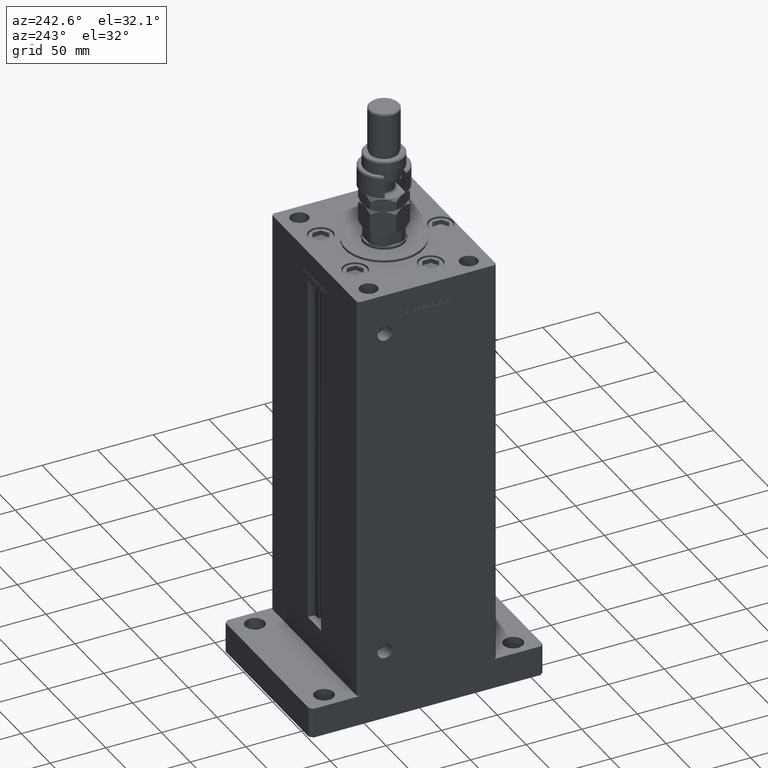
[diagram: clean part render]
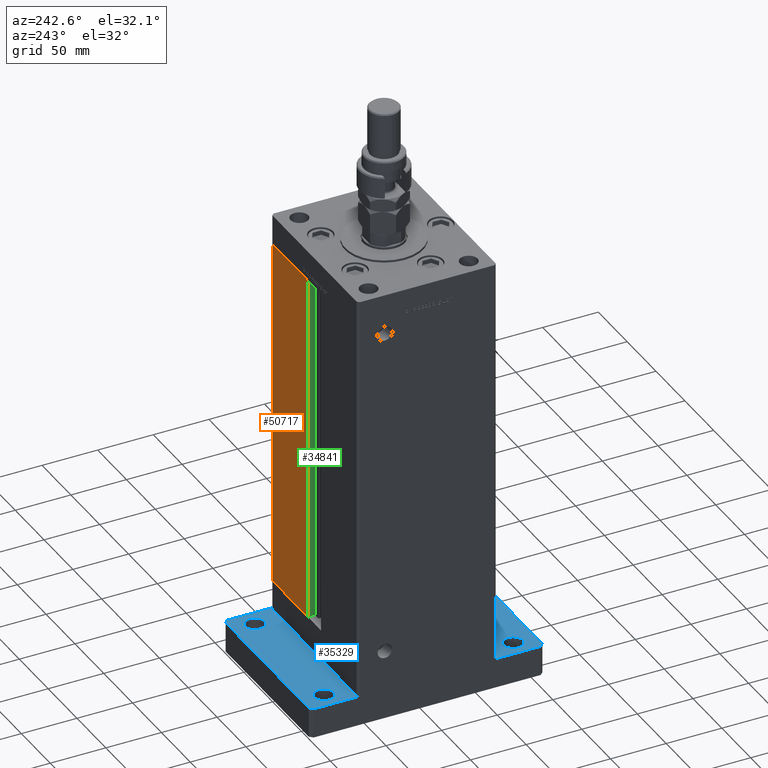
[diagram: same view with three faces highlighted in distinct colors, each labeled with its STEP entity id]
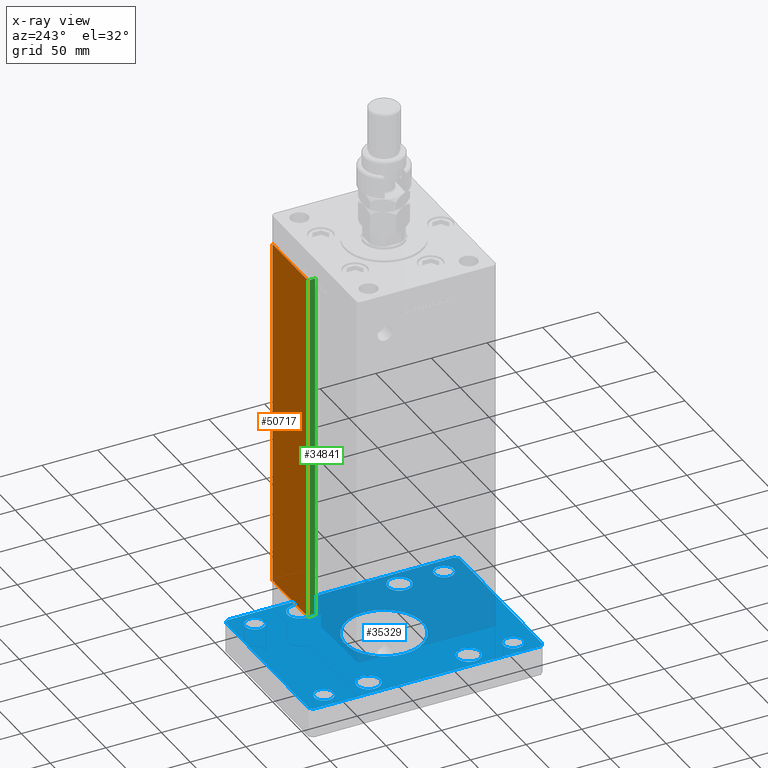
[diagram: x-ray of the same camera — body ghosted, the three highlighted faces saturated]
A machine part, auxiliary view with three faces highlighted in distinct colors.
The next image is the same camera in x-ray (body ghosted, the three faces saturated) — at least one of them is partly hidden behind the body in this view.
Their STEP definitions:

[orange] entity #50717 — the highlighted planar face has unit normal (-0, -1, 0).
#1175 = ORIENTED_EDGE ( 'NONE', *, *, #5462, .T. ) ;
#1516 = ORIENTED_EDGE ( 'NONE', *, *, #23964, .T. ) ;
#2817 = CARTESIAN_POINT ( 'NONE',  ( -11.25000000000000178, 62.49999999999999289, 0.000000000000000000 ) ) ;
#5462 = EDGE_CURVE ( 'NONE', #37058, #23204, #15804, .T. ) ;
#5812 = VERTEX_POINT ( 'NONE', #39892 ) ;
#6486 = ORIENTED_EDGE ( 'NONE', *, *, #41659, .T. ) ;
#7760 = LINE ( 'NONE', #39496, #27200 ) ;
#8631 = ORIENTED_EDGE ( 'NONE', *, *, #11453, .T. ) ;
#9453 = VECTOR ( 'NONE', #19706, 1000.000000000000000 ) ;
#11453 = EDGE_CURVE ( 'NONE', #34259, #37058, #35300, .T. ) ;
#12185 = PLANE ( 'NONE',  #25629 ) ;
#12911 = DIRECTION ( 'NONE',  ( -0.000000000000000000, -0.000000000000000000, 1.000000000000000000 ) ) ;
#14134 = VECTOR ( 'NONE', #37558, 1000.000000000000000 ) ;
#14159 = EDGE_LOOP ( 'NONE', ( #1516, #6486, #8631, #1175 ) ) ;
#14612 = CARTESIAN_POINT ( 'NONE',  ( 73.00000000000001421, 62.50000000000000000, 317.0000000000000000 ) ) ;
#15236 = CARTESIAN_POINT ( 'NONE',  ( 73.00000000000001421, 62.50000000000000000, 317.0000000000000000 ) ) ;
#15804 = LINE ( 'NONE', #15236, #14134 ) ;
#19706 = DIRECTION ( 'NONE',  ( -1.000000000000000000, 1.123707514802790025E-16, 0.000000000000000000 ) ) ;
#20557 = LINE ( 'NONE', #2817, #9453 ) ;
#21290 = DIRECTION ( 'NONE',  ( 1.000000000000000000, 0.000000000000000000, 0.000000000000000000 ) ) ;
#23204 = VERTEX_POINT ( 'NONE', #52506 ) ;
#23964 = EDGE_CURVE ( 'NONE', #23204, #5812, #20557, .T. ) ;
#24780 = DIRECTION ( 'NONE',  ( -1.123707514802790025E-16, -1.000000000000000000, 0.000000000000000000 ) ) ;
#25063 = CARTESIAN_POINT ( 'NONE',  ( -11.25000000000000178, 62.49999999999999289, 317.0000000000000000 ) ) ;
#25629 = AXIS2_PLACEMENT_3D ( 'NONE', #25063, #24780, #29652 ) ;
#27200 = VECTOR ( 'NONE', #12911, 1000.000000000000000 ) ;
#29652 = DIRECTION ( 'NONE',  ( 1.000000000000000000, -1.123707514802790025E-16, 0.000000000000000000 ) ) ;
#34259 = VERTEX_POINT ( 'NONE', #45873 ) ;
#35300 = LINE ( 'NONE', #47321, #54807 ) ;
#37058 = VERTEX_POINT ( 'NONE', #14612 ) ;
#37558 = DIRECTION ( 'NONE',  ( -0.000000000000000000, -0.000000000000000000, -1.000000000000000000 ) ) ;
#39496 = CARTESIAN_POINT ( 'NONE',  ( 11.25000000000000178, 62.49999999999999289, 0.000000000000000000 ) ) ;
#39892 = CARTESIAN_POINT ( 'NONE',  ( 11.25000000000000178, 62.49999999999999289, 0.000000000000000000 ) ) ;
#41096 = FACE_OUTER_BOUND ( 'NONE', #14159, .T. ) ;
#41659 = EDGE_CURVE ( 'NONE', #5812, #34259, #7760, .T. ) ;
#45873 = CARTESIAN_POINT ( 'NONE',  ( 11.24999999999999467, 62.49999999999999289, 317.0000000000000000 ) ) ;
#47321 = CARTESIAN_POINT ( 'NONE',  ( -11.25000000000000178, 62.49999999999999289, 317.0000000000000000 ) ) ;
#50717 = ADVANCED_FACE ( 'NONE', ( #41096 ), #12185, .F. ) ;
#52506 = CARTESIAN_POINT ( 'NONE',  ( 73.00000000000001421, 62.50000000000000000, 0.000000000000000000 ) ) ;
#54807 = VECTOR ( 'NONE', #21290, 1000.000000000000000 ) ;

[blue] entity #35329 — the highlighted planar face has unit normal (0, 0, 1).
#207 = CARTESIAN_POINT ( 'NONE',  ( 60.00000000000000000, 84.99999999999998579, 27.00000000000000000 ) ) ;
#529 = CARTESIAN_POINT ( 'NONE',  ( -71.99999999999998579, -105.0000000000000142, 27.00000000000000000 ) ) ;
#811 = VERTEX_POINT ( 'NONE', #529 ) ;
#1004 = ORIENTED_EDGE ( 'NONE', *, *, #27868, .F. ) ;
#1164 = VERTEX_POINT ( 'NONE', #29335 ) ;
#1234 = CARTESIAN_POINT ( 'NONE',  ( 60.00000000000000000, -45.00000000000000711, 27.00000000000000000 ) ) ;
#1528 = CARTESIAN_POINT ( 'NONE',  ( 59.99999999999997158, -85.00000000000001421, 27.00000000000000000 ) ) ;
#1726 = VERTEX_POINT ( 'NONE', #17087 ) ;
#1778 = EDGE_CURVE ( 'NONE', #24514, #32776, #24998, .T. ) ;
#2511 = AXIS2_PLACEMENT_3D ( 'NONE', #34039, #7698, #25156 ) ;
#2624 = ORIENTED_EDGE ( 'NONE', *, *, #52350, .F. ) ;
#2664 = DIRECTION ( 'NONE',  ( 0.000000000000000000, 0.000000000000000000, 1.000000000000000000 ) ) ;
#2779 = EDGE_LOOP ( 'NONE', ( #37802, #2624 ) ) ;
#2902 = EDGE_CURVE ( 'NONE', #39172, #39460, #36527, .T. ) ;
#2995 = CARTESIAN_POINT ( 'NONE',  ( 75.00000000000000000, -101.9999999999999005, 27.00000000000000000 ) ) ;
#2994 = VECTOR ( 'NONE', #30988, 1000.000000000000114 ) ;
#3221 = CARTESIAN_POINT ( 'NONE',  ( -35.00000000000000711, 0.000000000000000000, 27.00000000000000000 ) ) ;
#3891 = ORIENTED_EDGE ( 'NONE', *, *, #6166, .T. ) ;
#4042 = EDGE_CURVE ( 'NONE', #21079, #49286, #4045, .T. ) ;
#4045 = CIRCLE ( 'NONE', #48800, 10.49999999999999467 ) ;
#4122 = ORIENTED_EDGE ( 'NONE', *, *, #2902, .T. ) ;
#4257 = AXIS2_PLACEMENT_3D ( 'NONE', #1528, #18420, #4966 ) ;
#4577 = CARTESIAN_POINT ( 'NONE',  ( 49.50000000000000000, 45.00000000000000711, 27.00000000000000000 ) ) ;
#4856 = DIRECTION ( 'NONE',  ( -1.000000000000000000, -1.927470528863118062E-16, 0.000000000000000000 ) ) ;
#4966 = DIRECTION ( 'NONE',  ( 1.000000000000000000, 0.000000000000000000, 0.000000000000000000 ) ) ;
#5001 = DIRECTION ( 'NONE',  ( 0.000000000000000000, 0.000000000000000000, 1.000000000000000000 ) ) ;
#5056 = DIRECTION ( 'NONE',  ( 0.000000000000000000, 0.000000000000000000, 1.000000000000000000 ) ) ;
#5101 = VERTEX_POINT ( 'NONE', #49653 ) ;
#5157 = VERTEX_POINT ( 'NONE', #2995 ) ;
#5169 = ORIENTED_EDGE ( 'NONE', *, *, #53660, .F. ) ;
#6166 = EDGE_CURVE ( 'NONE', #811, #43187, #28378, .T. ) ;
#6388 = FACE_BOUND ( 'NONE', #13754, .T. ) ;
#6443 = CARTESIAN_POINT ( 'NONE',  ( 70.50000000000000000, 45.00000000000000711, 27.00000000000000000 ) ) ;
#6538 = ORIENTED_EDGE ( 'NONE', *, *, #46305, .T. ) ;
#6605 = CARTESIAN_POINT ( 'NONE',  ( -71.99999999999998579, -105.0000000000000142, 27.00000000000000000 ) ) ;
#6910 = DIRECTION ( 'NONE',  ( 1.000000000000000000, 0.000000000000000000, 0.000000000000000000 ) ) ;
#6959 = EDGE_CURVE ( 'NONE', #5157, #20305, #17806, .T. ) ;
#7103 = CARTESIAN_POINT ( 'NONE',  ( -51.25000000000000000, 84.99999999999997158, 27.00000000000000000 ) ) ;
#7250 = DIRECTION ( 'NONE',  ( 1.000000000000000000, 0.000000000000000000, 0.000000000000000000 ) ) ;
#7345 = EDGE_LOOP ( 'NONE', ( #54712, #16994 ) ) ;
#7493 = CIRCLE ( 'NONE', #32194, 8.750000000000007105 ) ;
#7698 = DIRECTION ( 'NONE',  ( 0.000000000000000000, 0.000000000000000000, 1.000000000000000000 ) ) ;
#7756 = VECTOR ( 'NONE', #20051, 1000.000000000000000 ) ;
#7914 = CARTESIAN_POINT ( 'NONE',  ( 60.00000000000000000, 45.00000000000000711, 27.00000000000000000 ) ) ;
#8344 = CIRCLE ( 'NONE', #11083, 10.50000000000000178 ) ;
#8429 = CIRCLE ( 'NONE', #40418, 8.750000000000007105 ) ;
#8832 = CIRCLE ( 'NONE', #4257, 8.750000000000007105 ) ;
#9043 = EDGE_CURVE ( 'NONE', #20305, #23847, #21345, .T. ) ;
#10484 = DIRECTION ( 'NONE',  ( 1.360567432138672081E-16, -1.000000000000000000, 0.000000000000000000 ) ) ;
#10923 = DIRECTION ( 'NONE',  ( 0.000000000000000000, 0.000000000000000000, 1.000000000000000000 ) ) ;
#11083 = AXIS2_PLACEMENT_3D ( 'NONE', #21630, #5001, #27334 ) ;
#11128 = EDGE_CURVE ( 'NONE', #32776, #24514, #54764, .T. ) ;
#11264 = FACE_BOUND ( 'NONE', #46950, .T. ) ;
#11542 = FACE_BOUND ( 'NONE', #37043, .T. ) ;
#11747 = VECTOR ( 'NONE', #56568, 1000.000000000000114 ) ;
#12007 = ORIENTED_EDGE ( 'NONE', *, *, #55751, .T. ) ;
#12045 = VERTEX_POINT ( 'NONE', #47398 ) ;
#12119 = LINE ( 'NONE', #24997, #27516 ) ;
#12317 = AXIS2_PLACEMENT_3D ( 'NONE', #47541, #38122, #33561 ) ;
#12701 = ORIENTED_EDGE ( 'NONE', *, *, #1778, .F. ) ;
#12826 = CARTESIAN_POINT ( 'NONE',  ( 68.75000000000000000, 84.99999999999998579, 27.00000000000000000 ) ) ;
#13073 = CARTESIAN_POINT ( 'NONE',  ( -74.99999999999998579, -102.0000000000000142, 27.00000000000000000 ) ) ;
#13112 = VERTEX_POINT ( 'NONE', #30198 ) ;
#13286 = CARTESIAN_POINT ( 'NONE',  ( -75.00000000000001421, 102.0000000000000000, 27.00000000000000000 ) ) ;
#13366 = CIRCLE ( 'NONE', #18877, 8.750000000000007105 ) ;
#13454 = CARTESIAN_POINT ( 'NONE',  ( -68.75000000000000000, 84.99999999999997158, 27.00000000000000000 ) ) ;
#13611 = EDGE_LOOP ( 'NONE', ( #27282, #12701 ) ) ;
#13754 = EDGE_LOOP ( 'NONE', ( #47249, #5169 ) ) ;
#13937 = EDGE_CURVE ( 'NONE', #32909, #5101, #28434, .T. ) ;
#14107 = AXIS2_PLACEMENT_3D ( 'NONE', #31191, #42991, #44335 ) ;
#14364 = CARTESIAN_POINT ( 'NONE',  ( 75.00000000000000000, -101.9999999999999005, 27.00000000000000000 ) ) ;
#15486 = AXIS2_PLACEMENT_3D ( 'NONE', #46678, #38100, #6910 ) ;
#15619 = AXIS2_PLACEMENT_3D ( 'NONE', #31378, #19312, #49646 ) ;
#15764 = CARTESIAN_POINT ( 'NONE',  ( 60.00000000000000000, 84.99999999999998579, 27.00000000000000000 ) ) ;
#16311 = ORIENTED_EDGE ( 'NONE', *, *, #45726, .F. ) ;
#16569 = ORIENTED_EDGE ( 'NONE', *, *, #27430, .F. ) ;
#16994 = ORIENTED_EDGE ( 'NONE', *, *, #41859, .F. ) ;
#17047 = DIRECTION ( 'NONE',  ( -0.7071067811865426878, 0.7071067811865524577, 0.000000000000000000 ) ) ;
#17087 = CARTESIAN_POINT ( 'NONE',  ( -70.50000000000000000, -45.00000000000000000, 27.00000000000000000 ) ) ;
#17387 = EDGE_CURVE ( 'NONE', #53898, #1164, #7493, .T. ) ;
#17806 = LINE ( 'NONE', #14364, #17840 ) ;
#17840 = VECTOR ( 'NONE', #26399, 1000.000000000000000 ) ;
#18125 = EDGE_CURVE ( 'NONE', #45719, #21024, #8429, .T. ) ;
#18420 = DIRECTION ( 'NONE',  ( 0.000000000000000000, 0.000000000000000000, 1.000000000000000000 ) ) ;
#18608 = VERTEX_POINT ( 'NONE', #25705 ) ;
#18877 = AXIS2_PLACEMENT_3D ( 'NONE', #47681, #21925, #56287 ) ;
#18967 = AXIS2_PLACEMENT_3D ( 'NONE', #29713, #56023, #46581 ) ;
#19312 = DIRECTION ( 'NONE',  ( 0.000000000000000000, 0.000000000000000000, 1.000000000000000000 ) ) ;
#19582 = ORIENTED_EDGE ( 'NONE', *, *, #56303, .F. ) ;
#19783 = DIRECTION ( 'NONE',  ( 0.000000000000000000, 0.000000000000000000, 1.000000000000000000 ) ) ;
#20051 = DIRECTION ( 'NONE',  ( 1.000000000000000000, 7.709882115452476194E-16, 0.000000000000000000 ) ) ;
#20124 = FACE_BOUND ( 'NONE', #49541, .T. ) ;
#20305 = VERTEX_POINT ( 'NONE', #54623 ) ;
#20688 = FACE_OUTER_BOUND ( 'NONE', #43717, .T. ) ;
#21024 = VERTEX_POINT ( 'NONE', #13454 ) ;
#21079 = VERTEX_POINT ( 'NONE', #4577 ) ;
#21345 = LINE ( 'NONE', #38796, #28272 ) ;
#21520 = CARTESIAN_POINT ( 'NONE',  ( -74.99999999999998579, -102.0000000000000142, 27.00000000000000000 ) ) ;
#21542 = AXIS2_PLACEMENT_3D ( 'NONE', #50682, #10923, #28401 ) ;
#21630 = CARTESIAN_POINT ( 'NONE',  ( -60.00000000000000000, 45.00000000000001421, 27.00000000000000000 ) ) ;
#21813 = CARTESIAN_POINT ( 'NONE',  ( 72.00000000000001421, -104.9999999999999005, 27.00000000000000000 ) ) ;
#21826 = CARTESIAN_POINT ( 'NONE',  ( -60.00000000000000711, 84.99999999999997158, 27.00000000000000000 ) ) ;
#21925 = DIRECTION ( 'NONE',  ( 0.000000000000000000, 0.000000000000000000, 1.000000000000000000 ) ) ;
#22029 = CARTESIAN_POINT ( 'NONE',  ( 72.00000000000004263, 105.0000000000000284, 27.00000000000000000 ) ) ;
#22189 = DIRECTION ( 'NONE',  ( 1.000000000000000000, 0.000000000000000000, 0.000000000000000000 ) ) ;
#22294 = VECTOR ( 'NONE', #10484, 1000.000000000000000 ) ;
#22632 = VERTEX_POINT ( 'NONE', #45250 ) ;
#23479 = EDGE_CURVE ( 'NONE', #43187, #5157, #35266, .T. ) ;
#23847 = VERTEX_POINT ( 'NONE', #49473 ) ;
#24049 = ORIENTED_EDGE ( 'NONE', *, *, #35154, .F. ) ;
#24514 = VERTEX_POINT ( 'NONE', #55548 ) ;
#24703 = FACE_BOUND ( 'NONE', #13611, .T. ) ;
#24997 = CARTESIAN_POINT ( 'NONE',  ( -72.00000000000002842, 105.0000000000000000, 27.00000000000000000 ) ) ;
#24998 = CIRCLE ( 'NONE', #30494, 10.49999999999999467 ) ;
#25156 = DIRECTION ( 'NONE',  ( 1.000000000000000000, 0.000000000000000000, 0.000000000000000000 ) ) ;
#25388 = DIRECTION ( 'NONE',  ( 1.000000000000000000, 0.000000000000000000, 0.000000000000000000 ) ) ;
#25705 = CARTESIAN_POINT ( 'NONE',  ( -49.49999999999999289, -45.00000000000000000, 27.00000000000000000 ) ) ;
#25960 = CARTESIAN_POINT ( 'NONE',  ( 60.00000000000000000, -45.00000000000000711, 27.00000000000000000 ) ) ;
#26399 = DIRECTION ( 'NONE',  ( 6.802837160693364103E-17, 1.000000000000000000, 0.000000000000000000 ) ) ;
#27282 = ORIENTED_EDGE ( 'NONE', *, *, #11128, .F. ) ;
#27334 = DIRECTION ( 'NONE',  ( 1.000000000000000000, 0.000000000000000000, 0.000000000000000000 ) ) ;
#27406 = CARTESIAN_POINT ( 'NONE',  ( -49.49999999999999289, 45.00000000000001421, 27.00000000000000000 ) ) ;
#27430 = EDGE_CURVE ( 'NONE', #1726, #18608, #38780, .T. ) ;
#27516 = VECTOR ( 'NONE', #51313, 1000.000000000000114 ) ;
#27868 = EDGE_CURVE ( 'NONE', #5101, #32909, #56189, .T. ) ;
#28015 = ORIENTED_EDGE ( 'NONE', *, *, #9043, .T. ) ;
#28272 = VECTOR ( 'NONE', #17047, 1000.000000000000000 ) ;
#28341 = CIRCLE ( 'NONE', #47514, 8.750000000000007105 ) ;
#28378 = LINE ( 'NONE', #6605, #7756 ) ;
#28401 = DIRECTION ( 'NONE',  ( 1.000000000000000000, 0.000000000000000000, 0.000000000000000000 ) ) ;
#28434 = CIRCLE ( 'NONE', #15619, 35.00000000000000711 ) ;
#28516 = CARTESIAN_POINT ( 'NONE',  ( -75.00000000000001421, 102.0000000000000000, 27.00000000000000000 ) ) ;
#29021 = CARTESIAN_POINT ( 'NONE',  ( 59.99999999999997158, -85.00000000000001421, 27.00000000000000000 ) ) ;
#29335 = CARTESIAN_POINT ( 'NONE',  ( 51.24999999999998579, 84.99999999999998579, 27.00000000000000000 ) ) ;
#29713 = CARTESIAN_POINT ( 'NONE',  ( -60.00000000000000000, 45.00000000000001421, 27.00000000000000000 ) ) ;
#29773 = ORIENTED_EDGE ( 'NONE', *, *, #13937, .F. ) ;
#30198 = CARTESIAN_POINT ( 'NONE',  ( -68.74999999999997158, -85.00000000000001421, 27.00000000000000000 ) ) ;
#30255 = EDGE_CURVE ( 'NONE', #13112, #22632, #50779, .T. ) ;
#30262 = LINE ( 'NONE', #13073, #11747 ) ;
#30494 = AXIS2_PLACEMENT_3D ( 'NONE', #25960, #34553, #25388 ) ;
#30988 = DIRECTION ( 'NONE',  ( 0.7071067811865459074, 0.7071067811865491270, 0.000000000000000000 ) ) ;
#31191 = CARTESIAN_POINT ( 'NONE',  ( -60.00000000000000000, -45.00000000000000000, 27.00000000000000000 ) ) ;
#31378 = CARTESIAN_POINT ( 'NONE',  ( 0.000000000000000000, 0.000000000000000000, 27.00000000000000000 ) ) ;
#32194 = AXIS2_PLACEMENT_3D ( 'NONE', #15764, #19783, #33246 ) ;
#32357 = ORIENTED_EDGE ( 'NONE', *, *, #36586, .F. ) ;
#32639 = EDGE_CURVE ( 'NONE', #50071, #48461, #8832, .T. ) ;
#32776 = VERTEX_POINT ( 'NONE', #36730 ) ;
#32870 = CIRCLE ( 'NONE', #15486, 8.750000000000007105 ) ;
#32909 = VERTEX_POINT ( 'NONE', #3221 ) ;
#33016 = DIRECTION ( 'NONE',  ( 1.000000000000000000, 0.000000000000000000, -0.000000000000000000 ) ) ;
#33246 = DIRECTION ( 'NONE',  ( 1.000000000000000000, 0.000000000000000000, 0.000000000000000000 ) ) ;
#33305 = CARTESIAN_POINT ( 'NONE',  ( 0.000000000000000000, 0.000000000000000000, 27.00000000000000000 ) ) ;
#33561 = DIRECTION ( 'NONE',  ( 1.000000000000000000, 0.000000000000000000, 0.000000000000000000 ) ) ;
#33585 = FACE_BOUND ( 'NONE', #2779, .T. ) ;
#34039 = CARTESIAN_POINT ( 'NONE',  ( 60.00000000000000000, 45.00000000000000711, 27.00000000000000000 ) ) ;
#34296 = DIRECTION ( 'NONE',  ( 1.000000000000000000, 0.000000000000000000, 0.000000000000000000 ) ) ;
#34553 = DIRECTION ( 'NONE',  ( 0.000000000000000000, 0.000000000000000000, 1.000000000000000000 ) ) ;
#35154 = EDGE_CURVE ( 'NONE', #12045, #56079, #43633, .T. ) ;
#35200 = LINE ( 'NONE', #22029, #42828 ) ;
#35266 = LINE ( 'NONE', #21813, #2994 ) ;
#35329 = ADVANCED_FACE ( 'NONE', ( #11264, #20124, #24703, #11542, #33585, #20688, #37294, #38148, #46725, #6388 ), #41298, .T. ) ;
#36527 = LINE ( 'NONE', #28516, #22294 ) ;
#36586 = EDGE_CURVE ( 'NONE', #21024, #45719, #13366, .T. ) ;
#36730 = CARTESIAN_POINT ( 'NONE',  ( 49.50000000000000000, -45.00000000000000711, 27.00000000000000000 ) ) ;
#37043 = EDGE_LOOP ( 'NONE', ( #32357, #49930 ) ) ;
#37294 = FACE_BOUND ( 'NONE', #48934, .T. ) ;
#37317 = ORIENTED_EDGE ( 'NONE', *, *, #6959, .T. ) ;
#37802 = ORIENTED_EDGE ( 'NONE', *, *, #30255, .F. ) ;
#37910 = CARTESIAN_POINT ( 'NONE',  ( 72.00000000000001421, -104.9999999999999005, 27.00000000000000000 ) ) ;
#38100 = DIRECTION ( 'NONE',  ( 0.000000000000000000, 0.000000000000000000, 1.000000000000000000 ) ) ;
#38122 = DIRECTION ( 'NONE',  ( 0.000000000000000000, 0.000000000000000000, 1.000000000000000000 ) ) ;
#38148 = FACE_BOUND ( 'NONE', #44878, .T. ) ;
#38780 = CIRCLE ( 'NONE', #14107, 10.50000000000000178 ) ;
#38796 = CARTESIAN_POINT ( 'NONE',  ( 75.00000000000001421, 102.0000000000000142, 27.00000000000000000 ) ) ;
#38820 = EDGE_CURVE ( 'NONE', #39460, #811, #30262, .T. ) ;
#39069 = CIRCLE ( 'NONE', #45450, 10.50000000000000178 ) ;
#39172 = VERTEX_POINT ( 'NONE', #13286 ) ;
#39370 = CARTESIAN_POINT ( 'NONE',  ( 68.74999999999997158, -85.00000000000001421, 27.00000000000000000 ) ) ;
#39460 = VERTEX_POINT ( 'NONE', #21520 ) ;
#40148 = DIRECTION ( 'NONE',  ( 0.000000000000000000, 0.000000000000000000, 1.000000000000000000 ) ) ;
#40418 = AXIS2_PLACEMENT_3D ( 'NONE', #21826, #52736, #48146 ) ;
#41298 = PLANE ( 'NONE',  #56427 ) ;
#41314 = CARTESIAN_POINT ( 'NONE',  ( -72.00000000000002842, 105.0000000000000000, 27.00000000000000000 ) ) ;
#41329 = CARTESIAN_POINT ( 'NONE',  ( -60.00000000000000000, -45.00000000000000000, 27.00000000000000000 ) ) ;
#41618 = DIRECTION ( 'NONE',  ( 1.000000000000000000, 0.000000000000000000, 0.000000000000000000 ) ) ;
#41859 = EDGE_CURVE ( 'NONE', #49286, #21079, #51870, .T. ) ;
#41892 = DIRECTION ( 'NONE',  ( 0.000000000000000000, 0.000000000000000000, 1.000000000000000000 ) ) ;
#42215 = EDGE_CURVE ( 'NONE', #18608, #1726, #39069, .T. ) ;
#42519 = ORIENTED_EDGE ( 'NONE', *, *, #38820, .T. ) ;
#42828 = VECTOR ( 'NONE', #4856, 1000.000000000000000 ) ;
#42916 = AXIS2_PLACEMENT_3D ( 'NONE', #1234, #40148, #49579 ) ;
#42991 = DIRECTION ( 'NONE',  ( 0.000000000000000000, 0.000000000000000000, 1.000000000000000000 ) ) ;
#43187 = VERTEX_POINT ( 'NONE', #37910 ) ;
#43633 = CIRCLE ( 'NONE', #18967, 10.50000000000000178 ) ;
#43717 = EDGE_LOOP ( 'NONE', ( #3891, #55516, #37317, #28015, #6538, #12007, #4122, #42519 ) ) ;
#44335 = DIRECTION ( 'NONE',  ( 1.000000000000000000, 0.000000000000000000, 0.000000000000000000 ) ) ;
#44878 = EDGE_LOOP ( 'NONE', ( #16569, #49228 ) ) ;
#45250 = CARTESIAN_POINT ( 'NONE',  ( -51.24999999999996447, -85.00000000000001421, 27.00000000000000000 ) ) ;
#45450 = AXIS2_PLACEMENT_3D ( 'NONE', #41329, #41892, #41618 ) ;
#45561 = AXIS2_PLACEMENT_3D ( 'NONE', #207, #5056, #34296 ) ;
#45719 = VERTEX_POINT ( 'NONE', #7103 ) ;
#45726 = EDGE_CURVE ( 'NONE', #1164, #53898, #55619, .T. ) ;
#46305 = EDGE_CURVE ( 'NONE', #23847, #55682, #35200, .T. ) ;
#46581 = DIRECTION ( 'NONE',  ( 1.000000000000000000, 0.000000000000000000, 0.000000000000000000 ) ) ;
#46678 = CARTESIAN_POINT ( 'NONE',  ( -59.99999999999997158, -85.00000000000001421, 27.00000000000000000 ) ) ;
#46725 = FACE_BOUND ( 'NONE', #7345, .T. ) ;
#46950 = EDGE_LOOP ( 'NONE', ( #29773, #1004 ) ) ;
#47249 = ORIENTED_EDGE ( 'NONE', *, *, #32639, .F. ) ;
#47398 = CARTESIAN_POINT ( 'NONE',  ( -70.50000000000000000, 45.00000000000001421, 27.00000000000000000 ) ) ;
#47514 = AXIS2_PLACEMENT_3D ( 'NONE', #29021, #56463, #7250 ) ;
#47541 = CARTESIAN_POINT ( 'NONE',  ( 0.000000000000000000, 0.000000000000000000, 27.00000000000000000 ) ) ;
#47681 = CARTESIAN_POINT ( 'NONE',  ( -60.00000000000000711, 84.99999999999997158, 27.00000000000000000 ) ) ;
#47911 = CARTESIAN_POINT ( 'NONE',  ( 51.24999999999995737, -85.00000000000001421, 27.00000000000000000 ) ) ;
#48146 = DIRECTION ( 'NONE',  ( 1.000000000000000000, 0.000000000000000000, 0.000000000000000000 ) ) ;
#48461 = VERTEX_POINT ( 'NONE', #39370 ) ;
#48800 = AXIS2_PLACEMENT_3D ( 'NONE', #7914, #51975, #22189 ) ;
#48934 = EDGE_LOOP ( 'NONE', ( #16311, #52869 ) ) ;
#49228 = ORIENTED_EDGE ( 'NONE', *, *, #42215, .F. ) ;
#49286 = VERTEX_POINT ( 'NONE', #6443 ) ;
#49473 = CARTESIAN_POINT ( 'NONE',  ( 72.00000000000004263, 105.0000000000000284, 27.00000000000000000 ) ) ;
#49541 = EDGE_LOOP ( 'NONE', ( #24049, #19582 ) ) ;
#49579 = DIRECTION ( 'NONE',  ( 1.000000000000000000, 0.000000000000000000, 0.000000000000000000 ) ) ;
#49646 = DIRECTION ( 'NONE',  ( 1.000000000000000000, 0.000000000000000000, 0.000000000000000000 ) ) ;
#49653 = CARTESIAN_POINT ( 'NONE',  ( 35.00000000000000711, 4.286263797015737285E-15, 27.00000000000000000 ) ) ;
#49930 = ORIENTED_EDGE ( 'NONE', *, *, #18125, .F. ) ;
#50071 = VERTEX_POINT ( 'NONE', #47911 ) ;
#50682 = CARTESIAN_POINT ( 'NONE',  ( -59.99999999999997158, -85.00000000000001421, 27.00000000000000000 ) ) ;
#50779 = CIRCLE ( 'NONE', #21542, 8.750000000000007105 ) ;
#51313 = DIRECTION ( 'NONE',  ( -0.7071067811865459074, -0.7071067811865491270, 0.000000000000000000 ) ) ;
#51870 = CIRCLE ( 'NONE', #2511, 10.49999999999999467 ) ;
#51975 = DIRECTION ( 'NONE',  ( 0.000000000000000000, 0.000000000000000000, 1.000000000000000000 ) ) ;
#52350 = EDGE_CURVE ( 'NONE', #22632, #13112, #32870, .T. ) ;
#52736 = DIRECTION ( 'NONE',  ( 0.000000000000000000, 0.000000000000000000, 1.000000000000000000 ) ) ;
#52869 = ORIENTED_EDGE ( 'NONE', *, *, #17387, .F. ) ;
#53660 = EDGE_CURVE ( 'NONE', #48461, #50071, #28341, .T. ) ;
#53898 = VERTEX_POINT ( 'NONE', #12826 ) ;
#54623 = CARTESIAN_POINT ( 'NONE',  ( 75.00000000000001421, 102.0000000000000142, 27.00000000000000000 ) ) ;
#54712 = ORIENTED_EDGE ( 'NONE', *, *, #4042, .F. ) ;
#54764 = CIRCLE ( 'NONE', #42916, 10.49999999999999467 ) ;
#55516 = ORIENTED_EDGE ( 'NONE', *, *, #23479, .T. ) ;
#55548 = CARTESIAN_POINT ( 'NONE',  ( 70.50000000000000000, -45.00000000000000711, 27.00000000000000000 ) ) ;
#55619 = CIRCLE ( 'NONE', #45561, 8.750000000000007105 ) ;
#55682 = VERTEX_POINT ( 'NONE', #41314 ) ;
#55751 = EDGE_CURVE ( 'NONE', #55682, #39172, #12119, .T. ) ;
#56023 = DIRECTION ( 'NONE',  ( 0.000000000000000000, 0.000000000000000000, 1.000000000000000000 ) ) ;
#56079 = VERTEX_POINT ( 'NONE', #27406 ) ;
#56189 = CIRCLE ( 'NONE', #12317, 35.00000000000000711 ) ;
#56287 = DIRECTION ( 'NONE',  ( 1.000000000000000000, 0.000000000000000000, 0.000000000000000000 ) ) ;
#56303 = EDGE_CURVE ( 'NONE', #56079, #12045, #8344, .T. ) ;
#56427 = AXIS2_PLACEMENT_3D ( 'NONE', #33305, #2664, #33016 ) ;
#56463 = DIRECTION ( 'NONE',  ( 0.000000000000000000, 0.000000000000000000, 1.000000000000000000 ) ) ;
#56568 = DIRECTION ( 'NONE',  ( 0.7071067811865474617, -0.7071067811865474617, 0.000000000000000000 ) ) ;

[green] entity #34841 — the highlighted planar face has unit normal (1, 0, 0).
#588 = ORIENTED_EDGE ( 'NONE', *, *, #41659, .F. ) ;
#2000 = ORIENTED_EDGE ( 'NONE', *, *, #33813, .F. ) ;
#2260 = LINE ( 'NONE', #19719, #3262 ) ;
#2764 = CARTESIAN_POINT ( 'NONE',  ( 11.25000000000000178, 55.99999999999999289, 0.000000000000000000 ) ) ;
#3262 = VECTOR ( 'NONE', #37458, 1000.000000000000000 ) ;
#5812 = VERTEX_POINT ( 'NONE', #39892 ) ;
#7760 = LINE ( 'NONE', #39496, #27200 ) ;
#7978 = AXIS2_PLACEMENT_3D ( 'NONE', #17718, #26313, #22865 ) ;
#8212 = EDGE_CURVE ( 'NONE', #34259, #24196, #2260, .T. ) ;
#8468 = DIRECTION ( 'NONE',  ( -0.000000000000000000, -0.000000000000000000, 1.000000000000000000 ) ) ;
#8565 = EDGE_LOOP ( 'NONE', ( #588, #2000, #22745, #35137 ) ) ;
#12911 = DIRECTION ( 'NONE',  ( -0.000000000000000000, -0.000000000000000000, 1.000000000000000000 ) ) ;
#17058 = CARTESIAN_POINT ( 'NONE',  ( 11.25000000000000178, 55.99999999999999289, 0.000000000000000000 ) ) ;
#17718 = CARTESIAN_POINT ( 'NONE',  ( 11.25000000000000178, 55.99999999999999289, 0.000000000000000000 ) ) ;
#18567 = FACE_OUTER_BOUND ( 'NONE', #8565, .T. ) ;
#19719 = CARTESIAN_POINT ( 'NONE',  ( 11.25000000000000178, 0.000000000000000000, 317.0000000000000000 ) ) ;
#22745 = ORIENTED_EDGE ( 'NONE', *, *, #42046, .T. ) ;
#22865 = DIRECTION ( 'NONE',  ( 0.000000000000000000, 0.000000000000000000, -1.000000000000000000 ) ) ;
#24196 = VERTEX_POINT ( 'NONE', #26541 ) ;
#24909 = VERTEX_POINT ( 'NONE', #2764 ) ;
#26313 = DIRECTION ( 'NONE',  ( 1.000000000000000000, -0.000000000000000000, 0.000000000000000000 ) ) ;
#26541 = CARTESIAN_POINT ( 'NONE',  ( 11.25000000000000178, 55.99999999999999289, 317.0000000000000000 ) ) ;
#27200 = VECTOR ( 'NONE', #12911, 1000.000000000000000 ) ;
#32656 = LINE ( 'NONE', #37210, #37182 ) ;
#33813 = EDGE_CURVE ( 'NONE', #24909, #5812, #32656, .T. ) ;
#34259 = VERTEX_POINT ( 'NONE', #45873 ) ;
#34841 = ADVANCED_FACE ( 'NONE', ( #18567 ), #48323, .F. ) ;
#35137 = ORIENTED_EDGE ( 'NONE', *, *, #8212, .F. ) ;
#37182 = VECTOR ( 'NONE', #50077, 1000.000000000000000 ) ;
#37210 = CARTESIAN_POINT ( 'NONE',  ( 11.25000000000000178, 55.99999999999999289, 0.000000000000000000 ) ) ;
#37458 = DIRECTION ( 'NONE',  ( -0.000000000000000000, -1.000000000000000000, 0.000000000000000000 ) ) ;
#39027 = VECTOR ( 'NONE', #8468, 1000.000000000000000 ) ;
#39496 = CARTESIAN_POINT ( 'NONE',  ( 11.25000000000000178, 62.49999999999999289, 0.000000000000000000 ) ) ;
#39892 = CARTESIAN_POINT ( 'NONE',  ( 11.25000000000000178, 62.49999999999999289, 0.000000000000000000 ) ) ;
#41659 = EDGE_CURVE ( 'NONE', #5812, #34259, #7760, .T. ) ;
#42046 = EDGE_CURVE ( 'NONE', #24909, #24196, #43387, .T. ) ;
#43387 = LINE ( 'NONE', #17058, #39027 ) ;
#45873 = CARTESIAN_POINT ( 'NONE',  ( 11.24999999999999467, 62.49999999999999289, 317.0000000000000000 ) ) ;
#48323 = PLANE ( 'NONE',  #7978 ) ;
#50077 = DIRECTION ( 'NONE',  ( 0.000000000000000000, 1.000000000000000000, 0.000000000000000000 ) ) ;